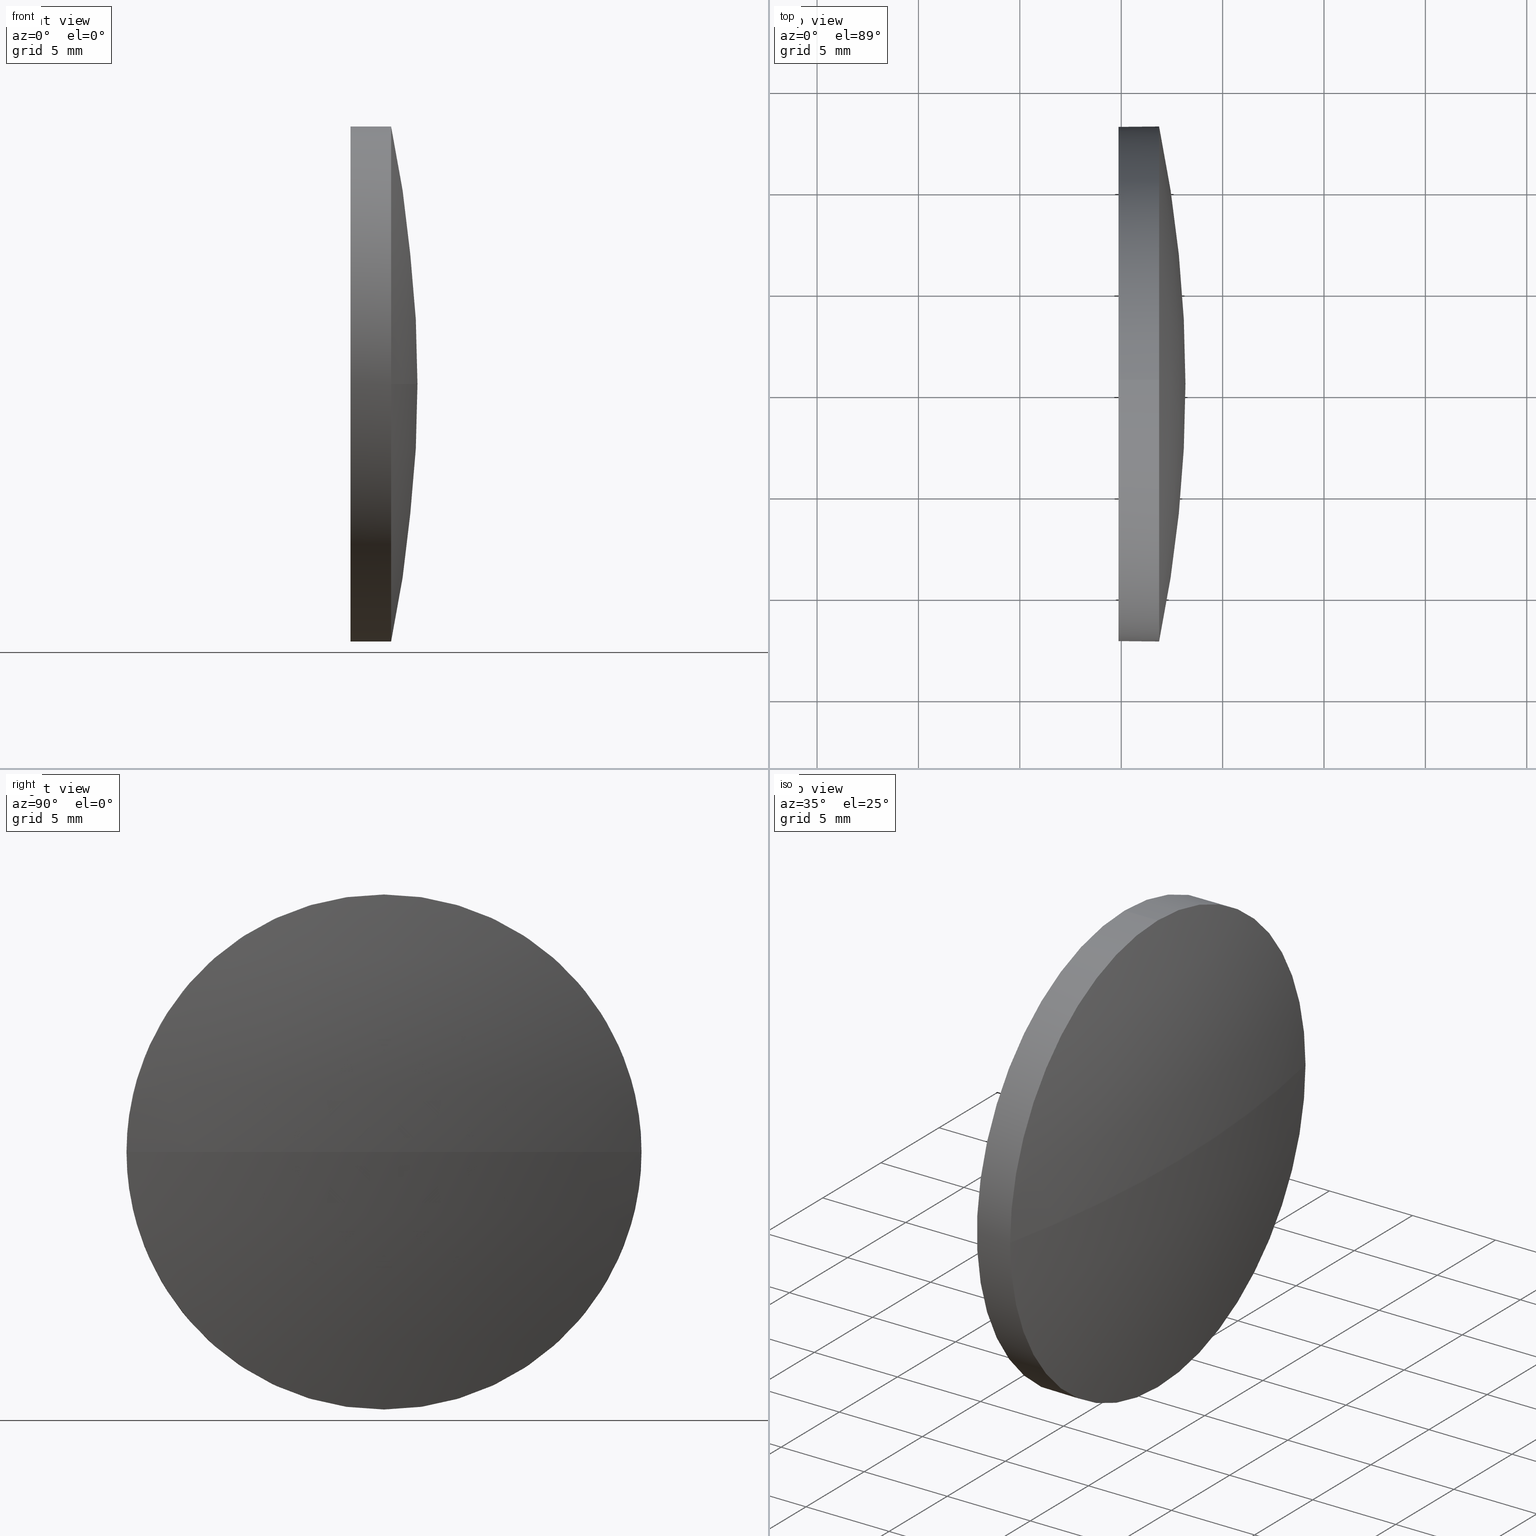
[diagram: canonical four-view strip — front | top / right | iso, engineering-drawing reading convention]
A machine part, canonical four-view strip (front | top / right | iso — engineering-drawing reading convention). The complete STEP part file that produces these views, byte-faithful:
ISO-10303-21;
HEADER;
FILE_DESCRIPTION (( 'STEP AP214' ),
    '1' );
FILE_NAME ('100491.STEP',
    '2019-06-12T05:39:23',
    ( '' ),
    ( '' ),
    'SwSTEP 2.0',
    'SolidWorks 2016',
    '' );
FILE_SCHEMA (( 'AUTOMOTIVE_DESIGN' ));
ENDSEC;

DATA;
#1 = MANIFOLD_SOLID_BREP ( '��ת1', #130 ) ;
#2 =( GEOMETRIC_REPRESENTATION_CONTEXT ( 3 ) GLOBAL_UNCERTAINTY_ASSIGNED_CONTEXT ( ( #178 ) ) GLOBAL_UNIT_ASSIGNED_CONTEXT ( ( #157, #121, #84 ) ) REPRESENTATION_CONTEXT ( 'NONE', 'WORKASPACE' ) );
#3 = ORIENTED_EDGE ( 'NONE', *, *, #14, .F. ) ;
#4 = EDGE_CURVE ( 'NONE', #126, #164, #25, .T. ) ;
#5 = CARTESIAN_POINT ( 'NONE',  ( 384.2381530977999100, 40.44166342956046400, 0.0000000000000000000 ) ) ;
#6 = SURFACE_SIDE_STYLE ('',( #61 ) ) ;
#7 = DIRECTION ( 'NONE',  ( 1.000000000000000000, 0.0000000000000000000, 0.0000000000000000000 ) ) ;
#8 = ORIENTED_EDGE ( 'NONE', *, *, #127, .T. ) ;
#9 = CARTESIAN_POINT ( 'NONE',  ( 384.2381530977999100, 40.44166342956046400, -12.70000000000000300 ) ) ;
#10 = APPLICATION_PROTOCOL_DEFINITION ( 'draft international standard', 'automotive_design', 1998, #114 ) ;
#11 = PRESENTATION_STYLE_ASSIGNMENT (( #44 ) ) ;
#12 =( LENGTH_UNIT ( ) NAMED_UNIT ( * ) SI_UNIT ( .MILLI., .METRE. ) );
#13 = VERTEX_POINT ( 'NONE', #143 ) ;
#14 = EDGE_CURVE ( 'NONE', #58, #159, #184, .T. ) ;
#15 = FACE_OUTER_BOUND ( 'NONE', #40, .T. ) ;
#16 = ORIENTED_EDGE ( 'NONE', *, *, #175, .F. ) ;
#17 = CARTESIAN_POINT ( 'NONE',  ( 389.8680491489571400, 40.44166342956046400, 0.0000000000000000000 ) ) ;
#18 = DIRECTION ( 'NONE',  ( 0.0000000000000000000, 1.000000000000000000, 0.0000000000000000000 ) ) ;
#19 = CARTESIAN_POINT ( 'NONE',  ( 330.4834337643415600, 40.44166342956027200, 0.0000000000000000000 ) ) ;
#20 = ORIENTED_EDGE ( 'NONE', *, *, #57, .T. ) ;
#21 = ADVANCED_FACE ( 'NONE', ( #69 ), #153, .T. ) ;
#22 = SHAPE_DEFINITION_REPRESENTATION ( #129, #173 ) ;
#23 = PRODUCT_DEFINITION_FORMATION_WITH_SPECIFIED_SOURCE ( '�κ�', '', #113, .NOT_KNOWN. ) ;
#24 = VECTOR ( 'NONE', #91, 1000.000000000000000 ) ;
#25 = CIRCLE ( 'NONE', #152, 12.70000000000000300 ) ;
#26 = MECHANICAL_DESIGN_GEOMETRIC_PRESENTATION_REPRESENTATION (  '', ( #141 ), #2 ) ;
#27 = CARTESIAN_POINT ( 'NONE',  ( 389.8680491489571400, 40.44166342956046400, 0.0000000000000000000 ) ) ;
#28 = AXIS2_PLACEMENT_3D ( 'NONE', #138, #174, #54 ) ;
#29 = DIRECTION ( 'NONE',  ( -1.000000000000000000, -0.0000000000000000000, -0.0000000000000000000 ) ) ;
#30 = SPHERICAL_SURFACE ( 'NONE', #149, 62.68461538461556200 ) ;
#31 = PLANE ( 'NONE',  #77 ) ;
#32 = DIRECTION ( 'NONE',  ( 0.0000000000000000000, 0.0000000000000000000, 1.000000000000000000 ) ) ;
#33 = CARTESIAN_POINT ( 'NONE',  ( 330.4834337643415600, 40.44166342956027200, 0.0000000000000000000 ) ) ;
#34 = EDGE_CURVE ( 'NONE', #93, #13, #99, .T. ) ;
#35 =( NAMED_UNIT ( * ) SI_UNIT ( $, .STERADIAN. ) SOLID_ANGLE_UNIT ( ) );
#36 = PRESENTATION_STYLE_ASSIGNMENT (( #95 ) ) ;
#37 = ORIENTED_EDGE ( 'NONE', *, *, #34, .F. ) ;
#38 = STYLED_ITEM ( 'NONE', ( #36 ), #173 ) ;
#39 = COLOUR_RGB ( '',1.000000000000000000, 1.000000000000000000, 1.000000000000000000 ) ;
#40 = EDGE_LOOP ( 'NONE', ( #20, #71 ) ) ;
#41 = AXIS2_PLACEMENT_3D ( 'NONE', #180, #62, #132 ) ;
#42 = ORIENTED_EDGE ( 'NONE', *, *, #175, .T. ) ;
#43 = AXIS2_PLACEMENT_3D ( 'NONE', #105, #168, #50 ) ;
#44 = SURFACE_STYLE_USAGE ( .BOTH. , #6 ) ;
#45 = CARTESIAN_POINT ( 'NONE',  ( 391.8680491489570800, 40.44166342956046400, 0.0000000000000000000 ) ) ;
#46 = EDGE_LOOP ( 'NONE', ( #53, #147, #137, #78, #81 ) ) ;
#47 = CARTESIAN_POINT ( 'NONE',  ( 389.8680491489571400, 40.44166342956046400, -12.70000000000000300 ) ) ;
#48 = EDGE_CURVE ( 'NONE', #164, #58, #56, .T. ) ;
#49 = DIRECTION ( 'NONE',  ( -1.000000000000000000, -0.0000000000000000000, -0.0000000000000000000 ) ) ;
#50 = DIRECTION ( 'NONE',  ( 0.0000000000000000000, 0.0000000000000000000, 1.000000000000000000 ) ) ;
#51 =( NAMED_UNIT ( * ) PLANE_ANGLE_UNIT ( ) SI_UNIT ( $, .RADIAN. ) );
#52 = AXIS2_PLACEMENT_3D ( 'NONE', #27, #74, #32 ) ;
#53 = ORIENTED_EDGE ( 'NONE', *, *, #48, .T. ) ;
#54 = DIRECTION ( 'NONE',  ( 1.000000000000000000, 0.0000000000000000000, 0.0000000000000000000 ) ) ;
#55 =( NAMED_UNIT ( * ) PLANE_ANGLE_UNIT ( ) SI_UNIT ( $, .RADIAN. ) );
#56 = CIRCLE ( 'NONE', #72, 12.70000000000000300 ) ;
#57 = EDGE_CURVE ( 'NONE', #13, #93, #176, .T. ) ;
#58 = VERTEX_POINT ( 'NONE', #102 ) ;
#59 = PRESENTATION_LAYER_ASSIGNMENT (  '', '', ( #38 ) ) ;
#60 = FILL_AREA_STYLE ('',( #161 ) ) ;
#61 = SURFACE_STYLE_FILL_AREA ( #60 ) ;
#62 = DIRECTION ( 'NONE',  ( -1.000000000000000000, -0.0000000000000000000, -0.0000000000000000000 ) ) ;
#63 = CARTESIAN_POINT ( 'NONE',  ( 391.8680491489570800, 40.44166342956046400, 0.0000000000000000000 ) ) ;
#64 = AXIS2_PLACEMENT_3D ( 'NONE', #5, #29, #86 ) ;
#65 = CIRCLE ( 'NONE', #68, 62.68461538461556200 ) ;
#66 = CARTESIAN_POINT ( 'NONE',  ( 384.2381530977999100, 40.44166342956046400, 0.0000000000000000000 ) ) ;
#67 = PRODUCT_CONTEXT ( 'NONE', #186, 'mechanical' ) ;
#68 = AXIS2_PLACEMENT_3D ( 'NONE', #87, #76, #7 ) ;
#69 = FACE_OUTER_BOUND ( 'NONE', #128, .T. ) ;
#70 = VECTOR ( 'NONE', #170, 1000.000000000000000 ) ;
#71 = ORIENTED_EDGE ( 'NONE', *, *, #34, .T. ) ;
#72 = AXIS2_PLACEMENT_3D ( 'NONE', #45, #160, #103 ) ;
#73 = ORIENTED_EDGE ( 'NONE', *, *, #133, .T. ) ;
#74 = DIRECTION ( 'NONE',  ( -1.000000000000000000, -0.0000000000000000000, -0.0000000000000000000 ) ) ;
#75 = DIRECTION ( 'NONE',  ( -0.0000000000000000000, 0.0000000000000000000, -1.000000000000000000 ) ) ;
#76 = DIRECTION ( 'NONE',  ( -0.0000000000000000000, 0.0000000000000000000, 1.000000000000000000 ) ) ;
#77 = AXIS2_PLACEMENT_3D ( 'NONE', #179, #163, #124 ) ;
#78 = ORIENTED_EDGE ( 'NONE', *, *, #181, .F. ) ;
#79 = ORIENTED_EDGE ( 'NONE', *, *, #48, .F. ) ;
#80 = CYLINDRICAL_SURFACE ( 'NONE', #97, 12.70000000000000300 ) ;
#81 = ORIENTED_EDGE ( 'NONE', *, *, #4, .T. ) ;
#82 = UNCERTAINTY_MEASURE_WITH_UNIT (LENGTH_MEASURE( 1.000000000000000100E-005 ), #12, 'distance_accuracy_value', 'NONE');
#83 = PRODUCT_DEFINITION_CONTEXT ( 'detailed design', #114, 'design' ) ;
#84 =( NAMED_UNIT ( * ) SI_UNIT ( $, .STERADIAN. ) SOLID_ANGLE_UNIT ( ) );
#85 = ORIENTED_EDGE ( 'NONE', *, *, #14, .T. ) ;
#86 = DIRECTION ( 'NONE',  ( 0.0000000000000000000, 0.0000000000000000000, 1.000000000000000000 ) ) ;
#87 = CARTESIAN_POINT ( 'NONE',  ( 330.4834337643415600, 40.44166342956027200, 0.0000000000000000000 ) ) ;
#88 = ORIENTED_EDGE ( 'NONE', *, *, #4, .F. ) ;
#89 = CARTESIAN_POINT ( 'NONE',  ( 391.8680491489570800, 40.44166342956046400, 12.70000000000000300 ) ) ;
#90 = DIRECTION ( 'NONE',  ( 0.0000000000000000000, 1.000000000000000000, 1.224646799147353200E-016 ) ) ;
#91 = DIRECTION ( 'NONE',  ( -1.000000000000000000, -0.0000000000000000000, -0.0000000000000000000 ) ) ;
#92 = SURFACE_STYLE_FILL_AREA ( #151 ) ;
#93 = VERTEX_POINT ( 'NONE', #47 ) ;
#94 = SURFACE_SIDE_STYLE ('',( #92 ) ) ;
#95 = SURFACE_STYLE_USAGE ( .BOTH. , #94 ) ;
#96 = AXIS2_PLACEMENT_3D ( 'NONE', #134, #145, #90 ) ;
#97 = AXIS2_PLACEMENT_3D ( 'NONE', #66, #49, #109 ) ;
#98 = SPHERICAL_SURFACE ( 'NONE', #139, 62.68461538461556200 ) ;
#99 = CIRCLE ( 'NONE', #162, 12.70000000000000300 ) ;
#100 = COLOUR_RGB ( '',1.000000000000000000, 1.000000000000000000, 1.000000000000000000 ) ;
#101 = DIRECTION ( 'NONE',  ( -1.000000000000000000, -0.0000000000000000000, -0.0000000000000000000 ) ) ;
#102 = CARTESIAN_POINT ( 'NONE',  ( 391.8680491489570800, 40.44166342956046400, -12.70000000000000300 ) ) ;
#103 = DIRECTION ( 'NONE',  ( 0.0000000000000000000, 0.0000000000000000000, 1.000000000000000000 ) ) ;
#104 = FACE_OUTER_BOUND ( 'NONE', #177, .T. ) ;
#105 = CARTESIAN_POINT ( 'NONE',  ( 391.8680491489570800, 40.44166342956046400, 0.0000000000000000000 ) ) ;
#106 = ADVANCED_FACE ( 'NONE', ( #15 ), #31, .F. ) ;
#107 = CARTESIAN_POINT ( 'NONE',  ( 391.8680491489570800, 53.14166342956043100, 0.0000000000000000000 ) ) ;
#108 = UNCERTAINTY_MEASURE_WITH_UNIT (LENGTH_MEASURE( 1.000000000000000100E-005 ), #135, 'distance_accuracy_value', 'NONE');
#109 = DIRECTION ( 'NONE',  ( 0.0000000000000000000, 0.0000000000000000000, 1.000000000000000000 ) ) ;
#110 = APPLICATION_PROTOCOL_DEFINITION ( 'draft international standard', 'automotive_design', 1998, #186 ) ;
#111 = FILL_AREA_STYLE_COLOUR ( '', #39 ) ;
#112 = PRODUCT_DEFINITION ( 'δ֪', '', #23, #83 ) ;
#113 = PRODUCT ( '100491', '100491', '', ( #67 ) ) ;
#114 = APPLICATION_CONTEXT ( 'automotive_design' ) ;
#115 = CIRCLE ( 'NONE', #96, 62.68461538461556200 ) ;
#116 = VERTEX_POINT ( 'NONE', #183 ) ;
#117 =( GEOMETRIC_REPRESENTATION_CONTEXT ( 3 ) GLOBAL_UNCERTAINTY_ASSIGNED_CONTEXT ( ( #82 ) ) GLOBAL_UNIT_ASSIGNED_CONTEXT ( ( #12, #55, #150 ) ) REPRESENTATION_CONTEXT ( 'NONE', 'WORKASPACE' ) );
#118 = DIRECTION ( 'NONE',  ( 0.0000000000000000000, 0.0000000000000000000, 1.000000000000000000 ) ) ;
#119 = ORIENTED_EDGE ( 'NONE', *, *, #181, .T. ) ;
#120 = DIRECTION ( 'NONE',  ( 0.0000000000000000000, 0.0000000000000000000, 1.000000000000000000 ) ) ;
#121 =( NAMED_UNIT ( * ) PLANE_ANGLE_UNIT ( ) SI_UNIT ( $, .RADIAN. ) );
#122 = EDGE_LOOP ( 'NONE', ( #16, #73, #3, #79 ) ) ;
#123 = DIRECTION ( 'NONE',  ( 0.0000000000000000000, 1.000000000000000000, 0.0000000000000000000 ) ) ;
#124 = DIRECTION ( 'NONE',  ( 0.0000000000000000000, 0.0000000000000000000, -1.000000000000000000 ) ) ;
#125 = ADVANCED_FACE ( 'NONE', ( #140 ), #80, .T. ) ;
#126 = VERTEX_POINT ( 'NONE', #89 ) ;
#127 = EDGE_CURVE ( 'NONE', #159, #126, #185, .T. ) ;
#128 = EDGE_LOOP ( 'NONE', ( #156, #85, #8, #119, #37 ) ) ;
#129 = PRODUCT_DEFINITION_SHAPE ( 'NONE', 'NONE',  #112 ) ;
#130 = CLOSED_SHELL ( 'NONE', ( #125, #167, #165, #21, #106 ) ) ;
#131 = LINE ( 'NONE', #9, #70 ) ;
#132 = DIRECTION ( 'NONE',  ( 0.0000000000000000000, 0.0000000000000000000, 1.000000000000000000 ) ) ;
#133 = EDGE_CURVE ( 'NONE', #116, #159, #115, .T. ) ;
#134 = CARTESIAN_POINT ( 'NONE',  ( 330.4834337643415600, 40.44166342956027200, 0.0000000000000000000 ) ) ;
#135 =( LENGTH_UNIT ( ) NAMED_UNIT ( * ) SI_UNIT ( .MILLI., .METRE. ) );
#136 = LINE ( 'NONE', #166, #24 ) ;
#137 = ORIENTED_EDGE ( 'NONE', *, *, #57, .F. ) ;
#138 = CARTESIAN_POINT ( 'NONE',  ( 0.0000000000000000000, 0.0000000000000000000, 0.0000000000000000000 ) ) ;
#139 = AXIS2_PLACEMENT_3D ( 'NONE', #33, #148, #18 ) ;
#140 = FACE_OUTER_BOUND ( 'NONE', #46, .T. ) ;
#141 = STYLED_ITEM ( 'NONE', ( #11 ), #1 ) ;
#142 = EDGE_CURVE ( 'NONE', #58, #93, #131, .T. ) ;
#143 = CARTESIAN_POINT ( 'NONE',  ( 389.8680491489571400, 40.44166342956046400, 12.70000000000000300 ) ) ;
#144 = FACE_OUTER_BOUND ( 'NONE', #122, .T. ) ;
#145 = DIRECTION ( 'NONE',  ( 0.0000000000000000000, 1.224646799147353200E-016, -1.000000000000000000 ) ) ;
#146 = CARTESIAN_POINT ( 'NONE',  ( 391.8680491489570800, 27.74166342956030500, -1.555301434917134300E-015 ) ) ;
#147 = ORIENTED_EDGE ( 'NONE', *, *, #142, .T. ) ;
#148 = DIRECTION ( 'NONE',  ( -0.0000000000000000000, 0.0000000000000000000, -1.000000000000000000 ) ) ;
#149 = AXIS2_PLACEMENT_3D ( 'NONE', #19, #75, #123 ) ;
#150 =( NAMED_UNIT ( * ) SI_UNIT ( $, .STERADIAN. ) SOLID_ANGLE_UNIT ( ) );
#151 = FILL_AREA_STYLE ('',( #111 ) ) ;
#152 = AXIS2_PLACEMENT_3D ( 'NONE', #63, #101, #120 ) ;
#153 = CYLINDRICAL_SURFACE ( 'NONE', #64, 12.70000000000000300 ) ;
#154 = ORIENTED_EDGE ( 'NONE', *, *, #133, .F. ) ;
#155 =( GEOMETRIC_REPRESENTATION_CONTEXT ( 3 ) GLOBAL_UNCERTAINTY_ASSIGNED_CONTEXT ( ( #108 ) ) GLOBAL_UNIT_ASSIGNED_CONTEXT ( ( #135, #51, #35 ) ) REPRESENTATION_CONTEXT ( 'NONE', 'WORKASPACE' ) );
#156 = ORIENTED_EDGE ( 'NONE', *, *, #142, .F. ) ;
#157 =( LENGTH_UNIT ( ) NAMED_UNIT ( * ) SI_UNIT ( .MILLI., .METRE. ) );
#158 = DIRECTION ( 'NONE',  ( -1.000000000000000000, -0.0000000000000000000, -0.0000000000000000000 ) ) ;
#159 = VERTEX_POINT ( 'NONE', #146 ) ;
#160 = DIRECTION ( 'NONE',  ( -1.000000000000000000, -0.0000000000000000000, -0.0000000000000000000 ) ) ;
#161 = FILL_AREA_STYLE_COLOUR ( '', #100 ) ;
#162 = AXIS2_PLACEMENT_3D ( 'NONE', #17, #158, #118 ) ;
#163 = DIRECTION ( 'NONE',  ( 1.000000000000000000, 0.0000000000000000000, 0.0000000000000000000 ) ) ;
#164 = VERTEX_POINT ( 'NONE', #107 ) ;
#165 = ADVANCED_FACE ( 'NONE', ( #104 ), #98, .T. ) ;
#166 = CARTESIAN_POINT ( 'NONE',  ( 384.2381530977999100, 40.44166342956046400, 12.70000000000000300 ) ) ;
#167 = ADVANCED_FACE ( 'NONE', ( #144 ), #30, .T. ) ;
#168 = DIRECTION ( 'NONE',  ( -1.000000000000000000, -0.0000000000000000000, -0.0000000000000000000 ) ) ;
#169 = ORIENTED_EDGE ( 'NONE', *, *, #127, .F. ) ;
#170 = DIRECTION ( 'NONE',  ( -1.000000000000000000, -0.0000000000000000000, -0.0000000000000000000 ) ) ;
#171 = PRESENTATION_LAYER_ASSIGNMENT (  '', '', ( #141 ) ) ;
#172 = MECHANICAL_DESIGN_GEOMETRIC_PRESENTATION_REPRESENTATION (  '', ( #38 ), #117 ) ;
#173 = ADVANCED_BREP_SHAPE_REPRESENTATION ( '100491', ( #1, #28 ), #155 ) ;
#174 = DIRECTION ( 'NONE',  ( 0.0000000000000000000, 0.0000000000000000000, 1.000000000000000000 ) ) ;
#175 = EDGE_CURVE ( 'NONE', #116, #164, #65, .T. ) ;
#176 = CIRCLE ( 'NONE', #52, 12.70000000000000300 ) ;
#177 = EDGE_LOOP ( 'NONE', ( #154, #42, #88, #169 ) ) ;
#178 = UNCERTAINTY_MEASURE_WITH_UNIT (LENGTH_MEASURE( 1.000000000000000100E-005 ), #157, 'distance_accuracy_value', 'NONE');
#179 = CARTESIAN_POINT ( 'NONE',  ( 389.8680491489571400, 40.44166342956046400, 0.0000000000000000000 ) ) ;
#180 = CARTESIAN_POINT ( 'NONE',  ( 391.8680491489570800, 40.44166342956046400, 0.0000000000000000000 ) ) ;
#181 = EDGE_CURVE ( 'NONE', #126, #13, #136, .T. ) ;
#182 = PRODUCT_RELATED_PRODUCT_CATEGORY ( 'part', '', ( #113 ) ) ;
#183 = CARTESIAN_POINT ( 'NONE',  ( 393.1680491489571000, 40.44166342956027900, 0.0000000000000000000 ) ) ;
#184 = CIRCLE ( 'NONE', #41, 12.70000000000000300 ) ;
#185 = CIRCLE ( 'NONE', #43, 12.70000000000000300 ) ;
#186 = APPLICATION_CONTEXT ( 'automotive_design' ) ;
ENDSEC;
END-ISO-10303-21;
